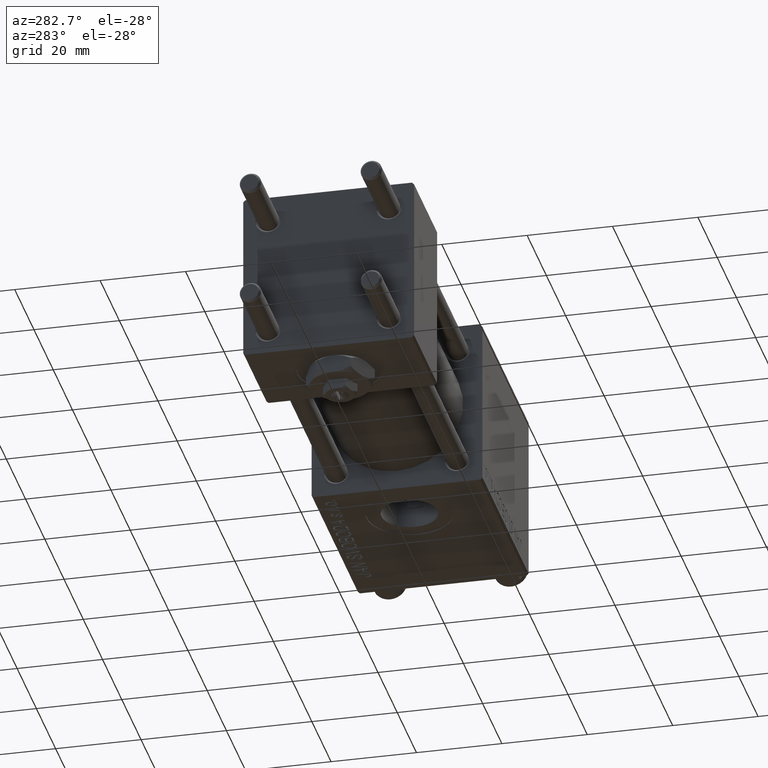
[diagram: clean part render]
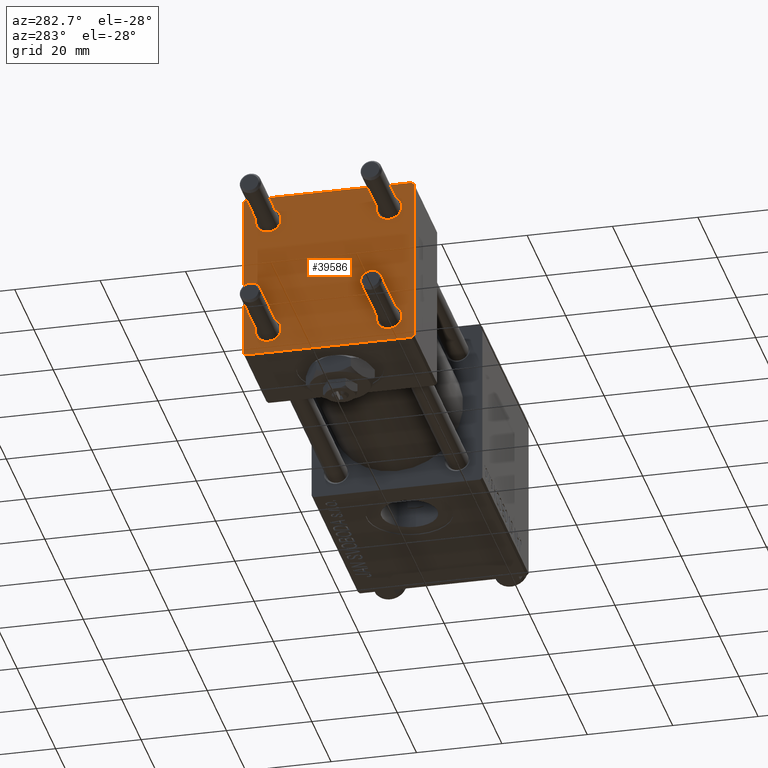
[diagram: same view with one face highlighted and labeled with its STEP entity id]
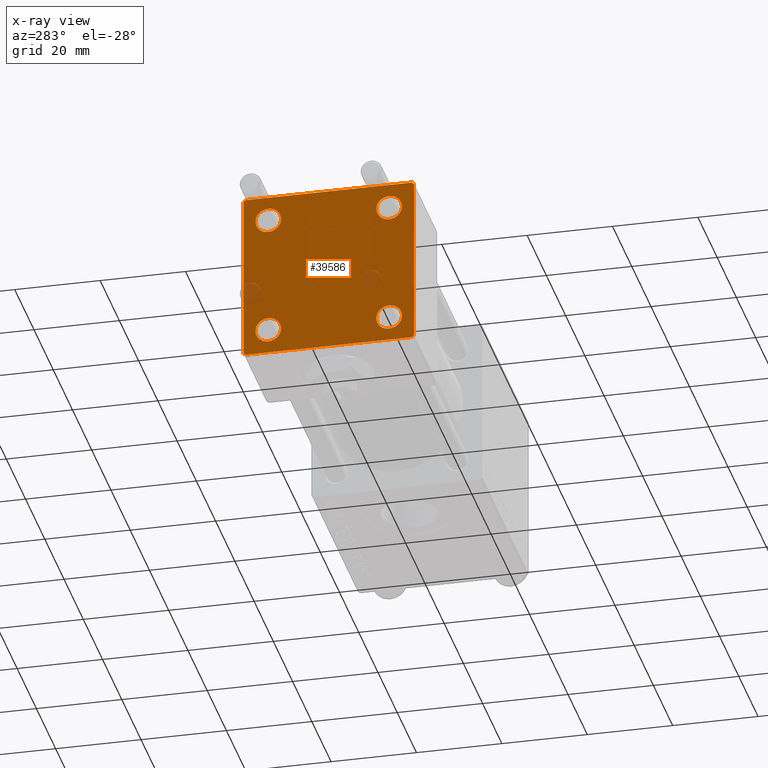
[diagram: x-ray of the same camera — body ghosted, the highlighted face saturated]
A machine part, auxiliary view. The second image highlights one B-rep face of the part: STEP entity #39586.
The next image is the same camera in x-ray: the body ghosted, the highlighted face saturated — about 3% of this face is hidden behind the body in this view.
In plain terms, the highlighted planar face has unit normal (-1, 0, 0).
Its self-contained STEP definition (entity closure, byte-faithful):
#307 = LINE ( 'NONE', #27570, #41061 ) ;
#814 = LINE ( 'NONE', #17081, #31142 ) ;
#2690 = PLANE ( 'NONE',  #44416 ) ;
#3150 = EDGE_CURVE ( 'NONE', #15320, #50145, #307, .T. ) ;
#3639 = CARTESIAN_POINT ( 'NONE',  ( 0.000000000000000000, 20.00000000000000000, 20.00000000000000000 ) ) ;
#3976 = DIRECTION ( 'NONE',  ( -1.000000000000000000, 0.000000000000000000, -0.000000000000000000 ) ) ;
#4063 = DIRECTION ( 'NONE',  ( 0.000000000000000000, -0.7071067811865401342, 0.7071067811865549002 ) ) ;
#4417 = AXIS2_PLACEMENT_3D ( 'NONE', #6860, #47264, #42535 ) ;
#4739 = CARTESIAN_POINT ( 'NONE',  ( 0.000000000000000000, 14.14999999999999858, -14.15000000000000036 ) ) ;
#5144 = CIRCLE ( 'NONE', #16865, 3.000000000000000888 ) ;
#5345 = AXIS2_PLACEMENT_3D ( 'NONE', #29767, #5893, #9588 ) ;
#5446 = LINE ( 'NONE', #21446, #29488 ) ;
#5740 = CARTESIAN_POINT ( 'NONE',  ( 0.000000000000000000, -14.14999999999999503, -17.15000000000000568 ) ) ;
#5893 = DIRECTION ( 'NONE',  ( 1.000000000000000000, 0.000000000000000000, 0.000000000000000000 ) ) ;
#6061 = EDGE_CURVE ( 'NONE', #15993, #13891, #46688, .T. ) ;
#6130 = LINE ( 'NONE', #22126, #22647 ) ;
#6344 = DIRECTION ( 'NONE',  ( 1.000000000000000000, 0.000000000000000000, 0.000000000000000000 ) ) ;
#6860 = CARTESIAN_POINT ( 'NONE',  ( 0.000000000000000000, -14.14999999999999503, 14.15000000000000391 ) ) ;
#7299 = VECTOR ( 'NONE', #4063, 1000.000000000000000 ) ;
#7368 = DIRECTION ( 'NONE',  ( 0.000000000000000000, 0.000000000000000000, 1.000000000000000000 ) ) ;
#7908 = CARTESIAN_POINT ( 'NONE',  ( 0.000000000000000000, -14.14999999999999503, -14.15000000000000391 ) ) ;
#8115 = EDGE_CURVE ( 'NONE', #23076, #43247, #18978, .T. ) ;
#8518 = DIRECTION ( 'NONE',  ( 1.000000000000000000, 0.000000000000000000, 0.000000000000000000 ) ) ;
#8723 = ORIENTED_EDGE ( 'NONE', *, *, #48267, .T. ) ;
#8894 = EDGE_CURVE ( 'NONE', #34048, #13891, #24924, .T. ) ;
#9044 = ORIENTED_EDGE ( 'NONE', *, *, #27481, .T. ) ;
#9393 = EDGE_CURVE ( 'NONE', #25234, #22368, #35540, .T. ) ;
#9530 = VECTOR ( 'NONE', #29401, 999.9999999999998863 ) ;
#9588 = DIRECTION ( 'NONE',  ( 0.000000000000000000, 0.000000000000000000, 1.000000000000000000 ) ) ;
#10093 = CARTESIAN_POINT ( 'NONE',  ( 0.000000000000000000, 19.50000000000000711, -20.00000000000000711 ) ) ;
#10286 = AXIS2_PLACEMENT_3D ( 'NONE', #43300, #43052, #7368 ) ;
#10553 = FACE_BOUND ( 'NONE', #32121, .T. ) ;
#10779 = DIRECTION ( 'NONE',  ( 0.000000000000000000, 0.000000000000000000, 1.000000000000000000 ) ) ;
#11179 = EDGE_LOOP ( 'NONE', ( #21060, #9044 ) ) ;
#11524 = EDGE_CURVE ( 'NONE', #43247, #23076, #50946, .T. ) ;
#11802 = DIRECTION ( 'NONE',  ( 0.000000000000000000, 0.000000000000000000, 1.000000000000000000 ) ) ;
#12428 = AXIS2_PLACEMENT_3D ( 'NONE', #35783, #8518, #44736 ) ;
#13669 = CARTESIAN_POINT ( 'NONE',  ( 0.000000000000000000, -20.00000000000000355, 19.49999999999998224 ) ) ;
#13762 = ORIENTED_EDGE ( 'NONE', *, *, #28044, .T. ) ;
#13891 = VERTEX_POINT ( 'NONE', #30062 ) ;
#13906 = EDGE_LOOP ( 'NONE', ( #13762, #41167, #45090, #48703, #37600, #37577, #18001, #25046 ) ) ;
#14153 = ORIENTED_EDGE ( 'NONE', *, *, #41578, .T. ) ;
#15320 = VERTEX_POINT ( 'NONE', #34126 ) ;
#15993 = VERTEX_POINT ( 'NONE', #46860 ) ;
#16037 = DIRECTION ( 'NONE',  ( -0.000000000000000000, 0.000000000000000000, 1.000000000000000000 ) ) ;
#16865 = AXIS2_PLACEMENT_3D ( 'NONE', #26775, #6344, #10779 ) ;
#17081 = CARTESIAN_POINT ( 'NONE',  ( 0.000000000000000000, 20.00000000000000000, 20.00000000000000000 ) ) ;
#17324 = AXIS2_PLACEMENT_3D ( 'NONE', #42499, #38306, #27007 ) ;
#17583 = CARTESIAN_POINT ( 'NONE',  ( 0.000000000000000000, -19.50000000000000711, -20.00000000000000000 ) ) ;
#18001 = ORIENTED_EDGE ( 'NONE', *, *, #6061, .F. ) ;
#18689 = CARTESIAN_POINT ( 'NONE',  ( 0.000000000000000000, 0.000000000000000000, 0.000000000000000000 ) ) ;
#18978 = CIRCLE ( 'NONE', #17324, 3.000000000000000888 ) ;
#19632 = DIRECTION ( 'NONE',  ( 0.000000000000000000, -1.000000000000000000, -2.602085213965210149E-16 ) ) ;
#19797 = CARTESIAN_POINT ( 'NONE',  ( 0.000000000000000000, -19.75000000000020961, -19.74999999999979394 ) ) ;
#20027 = VERTEX_POINT ( 'NONE', #5740 ) ;
#20366 = CARTESIAN_POINT ( 'NONE',  ( 0.000000000000000000, -14.14999999999999503, 11.15000000000000213 ) ) ;
#21060 = ORIENTED_EDGE ( 'NONE', *, *, #49614, .T. ) ;
#21446 = CARTESIAN_POINT ( 'NONE',  ( 0.000000000000000000, -20.00000000000000355, 19.99999999999998934 ) ) ;
#21975 = CARTESIAN_POINT ( 'NONE',  ( 0.000000000000000000, 14.14999999999999858, 17.15000000000000568 ) ) ;
#22126 = CARTESIAN_POINT ( 'NONE',  ( 0.000000000000000000, 20.00000000000000000, -20.00000000000000711 ) ) ;
#22368 = VERTEX_POINT ( 'NONE', #46637 ) ;
#22605 = VECTOR ( 'NONE', #19632, 1000.000000000000000 ) ;
#22619 = FACE_BOUND ( 'NONE', #40515, .T. ) ;
#22647 = VECTOR ( 'NONE', #45759, 1000.000000000000000 ) ;
#23076 = VERTEX_POINT ( 'NONE', #30688 ) ;
#24539 = VERTEX_POINT ( 'NONE', #27462 ) ;
#24596 = DIRECTION ( 'NONE',  ( 0.000000000000000000, 8.673617379884036705E-17, -1.000000000000000000 ) ) ;
#24644 = EDGE_CURVE ( 'NONE', #34048, #22368, #5446, .T. ) ;
#24924 = LINE ( 'NONE', #48822, #27357 ) ;
#25046 = ORIENTED_EDGE ( 'NONE', *, *, #31968, .T. ) ;
#25234 = VERTEX_POINT ( 'NONE', #17583 ) ;
#26207 = CIRCLE ( 'NONE', #10286, 3.000000000000000888 ) ;
#26775 = CARTESIAN_POINT ( 'NONE',  ( 0.000000000000000000, 14.14999999999999858, 14.15000000000000036 ) ) ;
#27007 = DIRECTION ( 'NONE',  ( 0.000000000000000000, 0.000000000000000000, 1.000000000000000000 ) ) ;
#27357 = VECTOR ( 'NONE', #29386, 1000.000000000000114 ) ;
#27462 = CARTESIAN_POINT ( 'NONE',  ( 0.000000000000000000, 20.00000000000000000, 19.49999999999999289 ) ) ;
#27481 = EDGE_CURVE ( 'NONE', #33790, #51337, #26207, .T. ) ;
#27570 = CARTESIAN_POINT ( 'NONE',  ( -0.000000000000000000, 19.74999999999986855, -19.75000000000014211 ) ) ;
#27588 = VERTEX_POINT ( 'NONE', #40877 ) ;
#27941 = ORIENTED_EDGE ( 'NONE', *, *, #8115, .T. ) ;
#28044 = EDGE_CURVE ( 'NONE', #24539, #15320, #814, .T. ) ;
#28324 = VERTEX_POINT ( 'NONE', #21975 ) ;
#28773 = CIRCLE ( 'NONE', #5345, 3.000000000000000888 ) ;
#29386 = DIRECTION ( 'NONE',  ( -0.000000000000000000, 0.7071067811865500152, 0.7071067811865451302 ) ) ;
#29401 = DIRECTION ( 'NONE',  ( 0.000000000000000000, 0.7071067811865425767, -0.7071067811865525687 ) ) ;
#29488 = VECTOR ( 'NONE', #24596, 1000.000000000000000 ) ;
#29767 = CARTESIAN_POINT ( 'NONE',  ( 0.000000000000000000, -14.14999999999999503, -14.15000000000000391 ) ) ;
#29968 = CARTESIAN_POINT ( 'NONE',  ( 0.000000000000000000, 14.14999999999999858, -17.15000000000000213 ) ) ;
#30062 = CARTESIAN_POINT ( 'NONE',  ( 0.000000000000000000, -19.49999999999999289, 19.99999999999998934 ) ) ;
#30205 = VERTEX_POINT ( 'NONE', #42306 ) ;
#30372 = CIRCLE ( 'NONE', #4417, 3.000000000000000888 ) ;
#30688 = CARTESIAN_POINT ( 'NONE',  ( 0.000000000000000000, 14.14999999999999858, -11.15000000000000036 ) ) ;
#31142 = VECTOR ( 'NONE', #49361, 1000.000000000000000 ) ;
#31968 = EDGE_CURVE ( 'NONE', #15993, #24539, #48299, .T. ) ;
#32121 = EDGE_LOOP ( 'NONE', ( #8723, #36233 ) ) ;
#32280 = ORIENTED_EDGE ( 'NONE', *, *, #11524, .T. ) ;
#32511 = AXIS2_PLACEMENT_3D ( 'NONE', #4739, #51702, #11802 ) ;
#32557 = DIRECTION ( 'NONE',  ( 1.000000000000000000, 0.000000000000000000, 0.000000000000000000 ) ) ;
#33790 = VERTEX_POINT ( 'NONE', #20366 ) ;
#34048 = VERTEX_POINT ( 'NONE', #13669 ) ;
#34126 = CARTESIAN_POINT ( 'NONE',  ( 0.000000000000000000, 20.00000000000000000, -19.50000000000002132 ) ) ;
#34591 = CIRCLE ( 'NONE', #47153, 3.000000000000000888 ) ;
#35540 = LINE ( 'NONE', #19797, #7299 ) ;
#35711 = EDGE_CURVE ( 'NONE', #28324, #27588, #50985, .T. ) ;
#35783 = CARTESIAN_POINT ( 'NONE',  ( 0.000000000000000000, 14.14999999999999858, 14.15000000000000036 ) ) ;
#36233 = ORIENTED_EDGE ( 'NONE', *, *, #50233, .T. ) ;
#37577 = ORIENTED_EDGE ( 'NONE', *, *, #8894, .T. ) ;
#37600 = ORIENTED_EDGE ( 'NONE', *, *, #24644, .F. ) ;
#38306 = DIRECTION ( 'NONE',  ( 1.000000000000000000, 0.000000000000000000, 0.000000000000000000 ) ) ;
#38621 = FACE_BOUND ( 'NONE', #48127, .T. ) ;
#39586 = ADVANCED_FACE ( 'NONE', ( #46513, #10553, #38621, #22619, #42555 ), #2690, .T. ) ;
#39648 = DIRECTION ( 'NONE',  ( -0.000000000000000000, -0.7071067811865524577, -0.7071067811865426878 ) ) ;
#40489 = EDGE_CURVE ( 'NONE', #50145, #25234, #6130, .T. ) ;
#40515 = EDGE_LOOP ( 'NONE', ( #46822, #14153 ) ) ;
#40877 = CARTESIAN_POINT ( 'NONE',  ( 0.000000000000000000, 14.14999999999999858, 11.14999999999999858 ) ) ;
#41061 = VECTOR ( 'NONE', #39648, 1000.000000000000000 ) ;
#41167 = ORIENTED_EDGE ( 'NONE', *, *, #3150, .T. ) ;
#41578 = EDGE_CURVE ( 'NONE', #27588, #28324, #5144, .T. ) ;
#41928 = CARTESIAN_POINT ( 'NONE',  ( 0.000000000000000000, -14.14999999999999503, 17.15000000000000568 ) ) ;
#42306 = CARTESIAN_POINT ( 'NONE',  ( 0.000000000000000000, -14.14999999999999503, -11.15000000000000391 ) ) ;
#42499 = CARTESIAN_POINT ( 'NONE',  ( 0.000000000000000000, 14.14999999999999858, -14.15000000000000036 ) ) ;
#42535 = DIRECTION ( 'NONE',  ( 0.000000000000000000, 0.000000000000000000, 1.000000000000000000 ) ) ;
#42555 = FACE_OUTER_BOUND ( 'NONE', #13906, .T. ) ;
#43052 = DIRECTION ( 'NONE',  ( 1.000000000000000000, 0.000000000000000000, 0.000000000000000000 ) ) ;
#43247 = VERTEX_POINT ( 'NONE', #29968 ) ;
#43300 = CARTESIAN_POINT ( 'NONE',  ( 0.000000000000000000, -14.14999999999999503, 14.15000000000000391 ) ) ;
#44416 = AXIS2_PLACEMENT_3D ( 'NONE', #18689, #3976, #16037 ) ;
#44642 = DIRECTION ( 'NONE',  ( 0.000000000000000000, 0.000000000000000000, 1.000000000000000000 ) ) ;
#44736 = DIRECTION ( 'NONE',  ( 0.000000000000000000, 0.000000000000000000, 1.000000000000000000 ) ) ;
#44896 = CARTESIAN_POINT ( 'NONE',  ( -0.000000000000000000, 19.75000000000013500, 19.74999999999986144 ) ) ;
#45090 = ORIENTED_EDGE ( 'NONE', *, *, #40489, .T. ) ;
#45759 = DIRECTION ( 'NONE',  ( 0.000000000000000000, -1.000000000000000000, 1.734723475976807094E-16 ) ) ;
#46513 = FACE_BOUND ( 'NONE', #11179, .T. ) ;
#46637 = CARTESIAN_POINT ( 'NONE',  ( 0.000000000000000000, -20.00000000000000000, -19.49999999999999645 ) ) ;
#46688 = LINE ( 'NONE', #3639, #22605 ) ;
#46822 = ORIENTED_EDGE ( 'NONE', *, *, #35711, .T. ) ;
#46860 = CARTESIAN_POINT ( 'NONE',  ( 0.000000000000000000, 19.50000000000000000, 20.00000000000000000 ) ) ;
#47153 = AXIS2_PLACEMENT_3D ( 'NONE', #7908, #32557, #44642 ) ;
#47264 = DIRECTION ( 'NONE',  ( 1.000000000000000000, 0.000000000000000000, 0.000000000000000000 ) ) ;
#48127 = EDGE_LOOP ( 'NONE', ( #27941, #32280 ) ) ;
#48267 = EDGE_CURVE ( 'NONE', #30205, #20027, #28773, .T. ) ;
#48299 = LINE ( 'NONE', #44896, #9530 ) ;
#48703 = ORIENTED_EDGE ( 'NONE', *, *, #9393, .T. ) ;
#48822 = CARTESIAN_POINT ( 'NONE',  ( -0.000000000000000000, -19.74999999999992539, 19.75000000000006395 ) ) ;
#49361 = DIRECTION ( 'NONE',  ( 0.000000000000000000, 0.000000000000000000, -1.000000000000000000 ) ) ;
#49614 = EDGE_CURVE ( 'NONE', #51337, #33790, #30372, .T. ) ;
#50145 = VERTEX_POINT ( 'NONE', #10093 ) ;
#50233 = EDGE_CURVE ( 'NONE', #20027, #30205, #34591, .T. ) ;
#50946 = CIRCLE ( 'NONE', #32511, 3.000000000000000888 ) ;
#50985 = CIRCLE ( 'NONE', #12428, 3.000000000000000888 ) ;
#51337 = VERTEX_POINT ( 'NONE', #41928 ) ;
#51702 = DIRECTION ( 'NONE',  ( 1.000000000000000000, 0.000000000000000000, 0.000000000000000000 ) ) ;